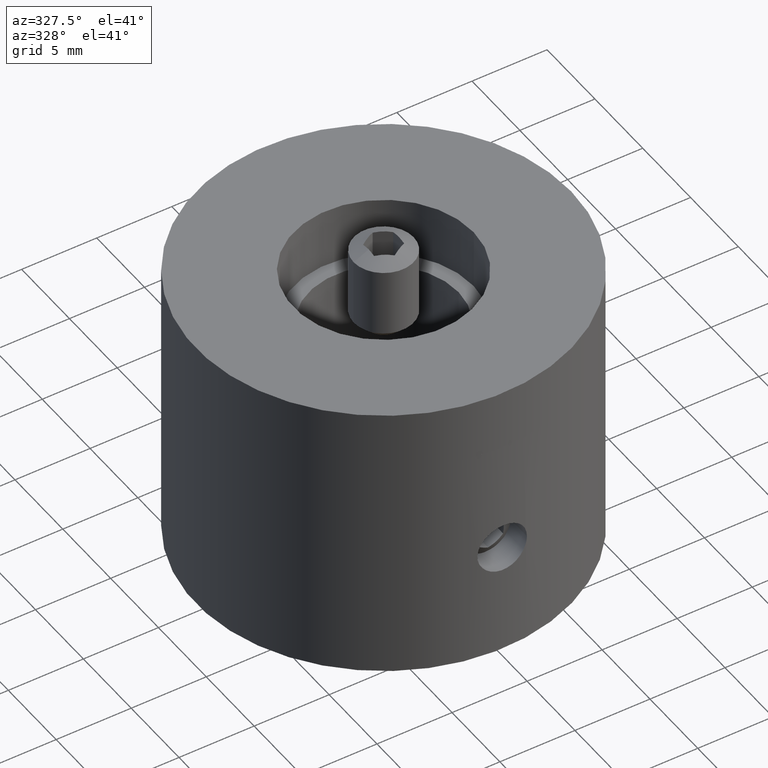
[diagram: clean part render]
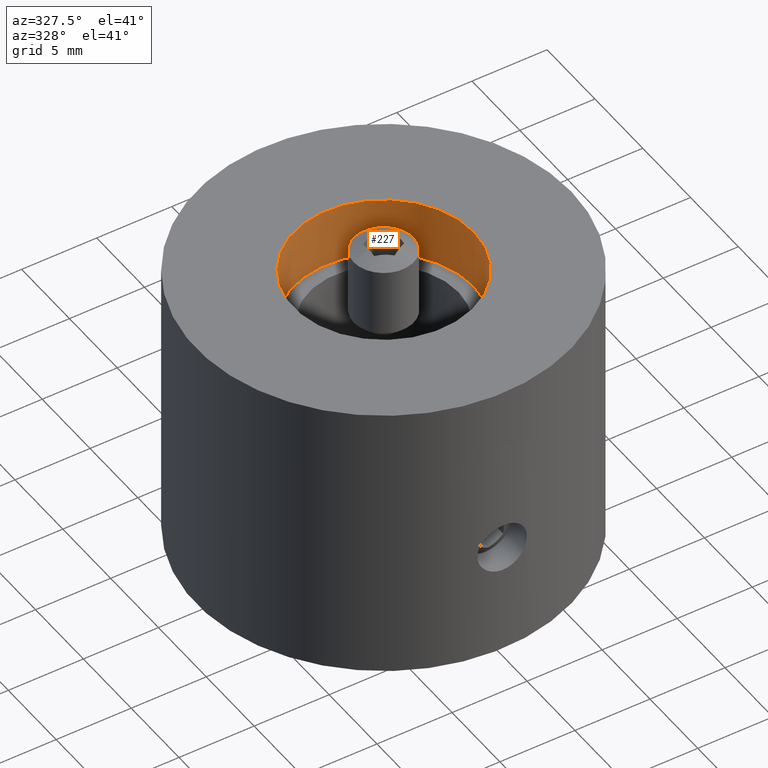
[diagram: same view with one face highlighted and labeled with its STEP entity id]
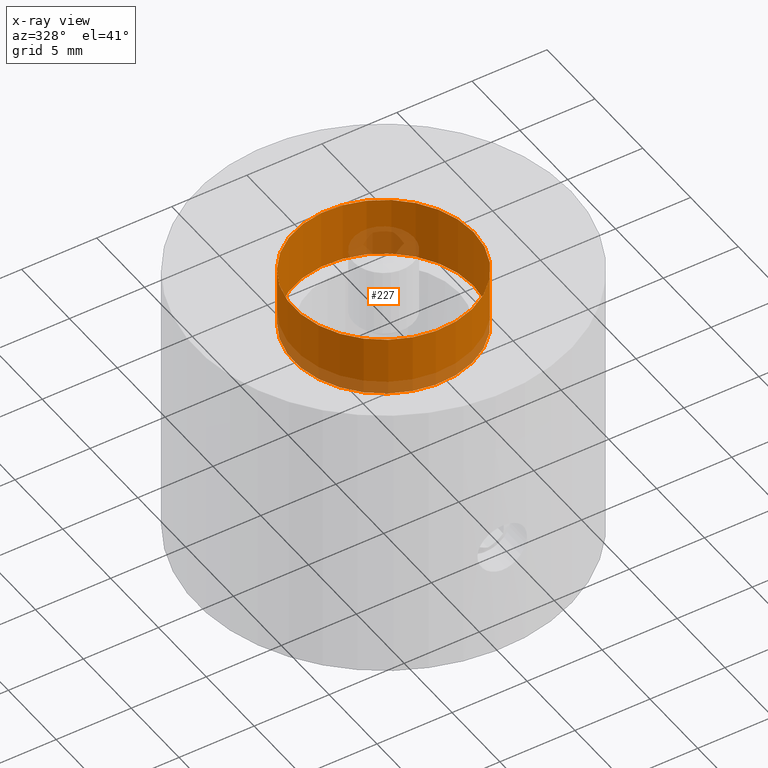
[diagram: x-ray of the same camera — body ghosted, the highlighted face saturated]
A machine part, auxiliary view. The second image highlights one B-rep face of the part: STEP entity #227.
The next image is the same camera in x-ray: the body ghosted, the highlighted face saturated — about 19% of this face is hidden behind the body in this view.
In plain terms, the highlighted cylindrical surface (bore or boss wall) has radius 6 mm, axis along (0, -0, 1).
Its self-contained STEP definition (entity closure, byte-faithful):
#227 = ADVANCED_FACE( '', ( #275, #276 ), #277, .F. );
#275 = FACE_OUTER_BOUND( '', #335, .T. );
#276 = FACE_OUTER_BOUND( '', #336, .T. );
#277 = CYLINDRICAL_SURFACE( '', #337, 6.00000000000000 );
#335 = EDGE_LOOP( '', ( #411 ) );
#336 = EDGE_LOOP( '', ( #412 ) );
#337 = AXIS2_PLACEMENT_3D( '', #413, #414, #415 );
#411 = ORIENTED_EDGE( '', *, *, #508, .T. );
#412 = ORIENTED_EDGE( '', *, *, #507, .F. );
#413 = CARTESIAN_POINT( '', ( 0.000000000000000, 0.000000000000000, 4.00000000000000 ) );
#414 = DIRECTION( '', ( 0.000000000000000, -0.000000000000000, 1.00000000000000 ) );
#415 = DIRECTION( '', ( -1.00000000000000, 0.000000000000000, 0.000000000000000 ) );
#507 = EDGE_CURVE( '', #551, #551, #552, .T. );
#508 = EDGE_CURVE( '', #553, #553, #554, .T. );
#551 = VERTEX_POINT( '', #827 );
#552 = CIRCLE( '', #828, 6.00000000000000 );
#553 = VERTEX_POINT( '', #829 );
#554 = CIRCLE( '', #830, 6.00000000000000 );
#827 = CARTESIAN_POINT( '', ( 6.00000000000000, 0.000000000000000, 0.000000000000000 ) );
#828 = AXIS2_PLACEMENT_3D( '', #927, #928, #929 );
#829 = CARTESIAN_POINT( '', ( 6.00000000000000, 0.000000000000000, 4.00000000000000 ) );
#830 = AXIS2_PLACEMENT_3D( '', #930, #931, #932 );
#927 = CARTESIAN_POINT( '', ( 0.000000000000000, 0.000000000000000, 0.000000000000000 ) );
#928 = DIRECTION( '', ( 0.000000000000000, 0.000000000000000, 1.00000000000000 ) );
#929 = DIRECTION( '', ( 1.00000000000000, 0.000000000000000, 0.000000000000000 ) );
#930 = CARTESIAN_POINT( '', ( 0.000000000000000, 0.000000000000000, 4.00000000000000 ) );
#931 = DIRECTION( '', ( 0.000000000000000, 0.000000000000000, 1.00000000000000 ) );
#932 = DIRECTION( '', ( 1.00000000000000, 0.000000000000000, 0.000000000000000 ) );